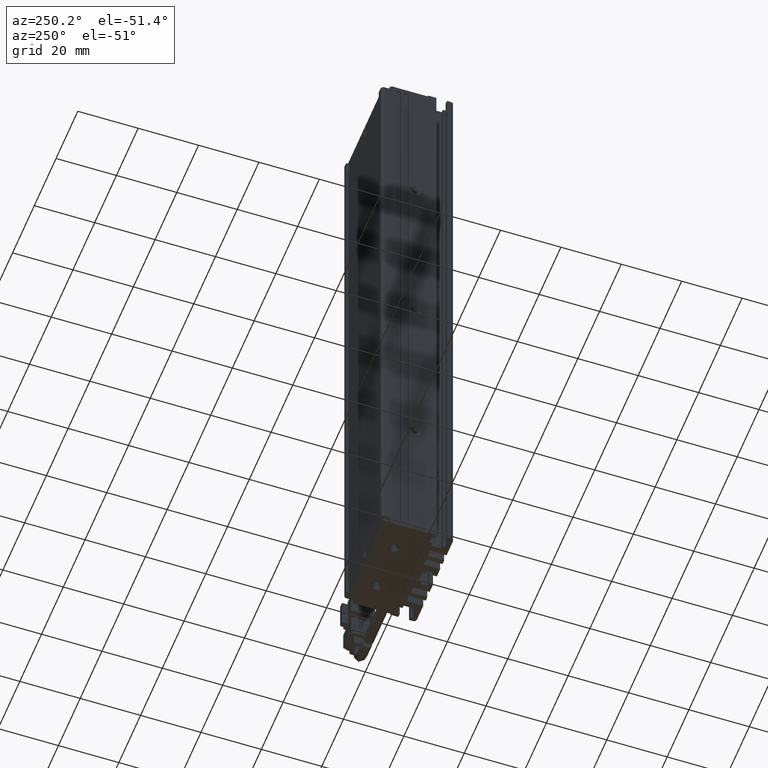
[diagram: clean part render]
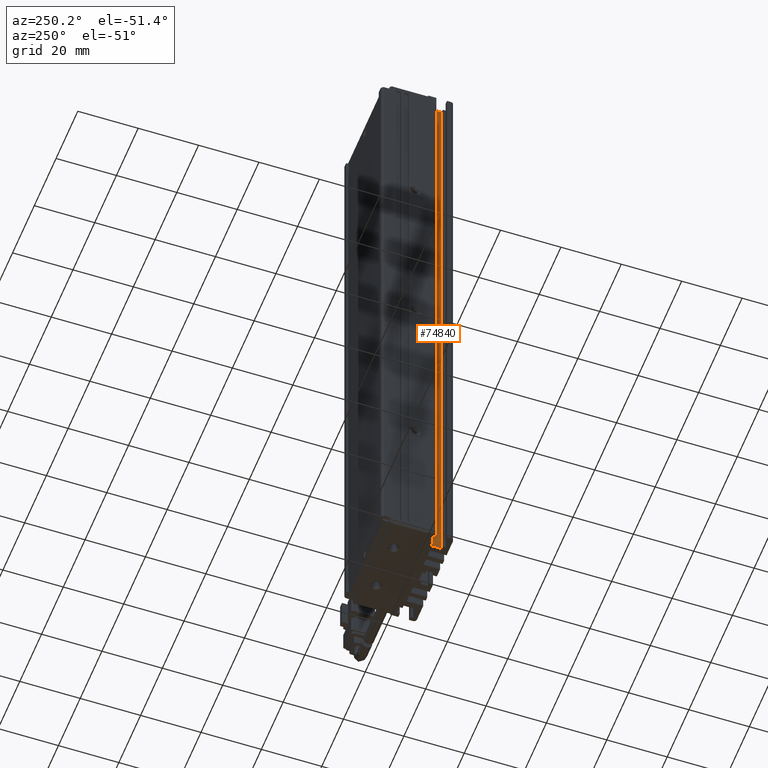
[diagram: same view with one face highlighted and labeled with its STEP entity id]
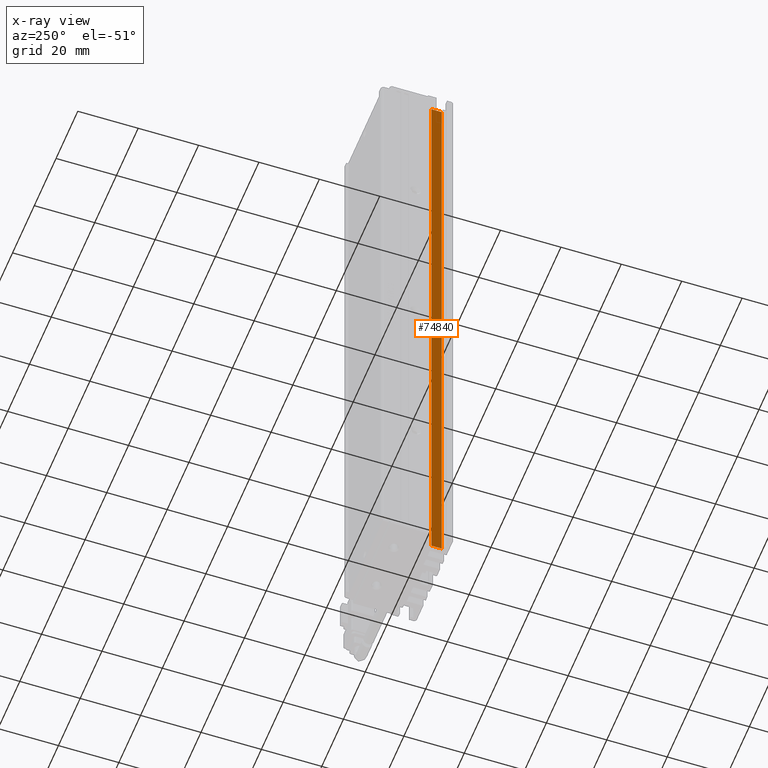
[diagram: x-ray of the same camera — body ghosted, the highlighted face saturated]
A machine part, auxiliary view. The second image highlights one B-rep face of the part: STEP entity #74840.
The next image is the same camera in x-ray: the body ghosted, the highlighted face saturated — about 0% of this face is hidden behind the body in this view.
In plain terms, the highlighted planar face has unit normal (1, 0, -0).
Its self-contained STEP definition (entity closure, byte-faithful):
#1075 = CARTESIAN_POINT ( 'NONE',  ( 28.22537974683543600, 13.29073232304836900, -224.0000000000000000 ) ) ;
#1155 = LINE ( 'NONE', #73774, #79936 ) ;
#1203 = FACE_OUTER_BOUND ( 'NONE', #14535, .T. ) ;
#1422 = AXIS2_PLACEMENT_3D ( 'NONE', #3128, #51761, #66402 ) ;
#3128 = CARTESIAN_POINT ( 'NONE',  ( 28.22537974683543600, 7.083797468354437600, -6.000000000000005300 ) ) ;
#3737 = LINE ( 'NONE', #33774, #52995 ) ;
#4650 = DIRECTION ( 'NONE',  ( -0.0000000000000000000, -1.000000000000000000, 0.0000000000000000000 ) ) ;
#7052 = CARTESIAN_POINT ( 'NONE',  ( 28.22537974683543600, 7.083797468354437600, -6.000000000000005300 ) ) ;
#10123 = EDGE_CURVE ( 'NONE', #84705, #78921, #3737, .T. ) ;
#14535 = EDGE_LOOP ( 'NONE', ( #76629, #51538, #63805, #66581 ) ) ;
#27289 = VECTOR ( 'NONE', #40760, 1000.000000000000000 ) ;
#33774 = CARTESIAN_POINT ( 'NONE',  ( 28.22537974683543600, 7.083797468354437600, -224.0000000000000000 ) ) ;
#40760 = DIRECTION ( 'NONE',  ( -0.0000000000000000000, -1.000000000000000000, 0.0000000000000000000 ) ) ;
#43129 = CARTESIAN_POINT ( 'NONE',  ( 28.22537974683543600, 13.29073232304836900, -6.000000000000005300 ) ) ;
#44721 = PLANE ( 'NONE',  #1422 ) ;
#45717 = EDGE_CURVE ( 'NONE', #84705, #72548, #1155, .T. ) ;
#51538 = ORIENTED_EDGE ( 'NONE', *, *, #66830, .F. ) ;
#51761 = DIRECTION ( 'NONE',  ( 1.000000000000000000, 0.0000000000000000000, -0.0000000000000000000 ) ) ;
#52890 = CARTESIAN_POINT ( 'NONE',  ( 28.22537974683543600, 16.79073232304837400, -224.0000000000000000 ) ) ;
#52995 = VECTOR ( 'NONE', #4650, 1000.000000000000000 ) ;
#56239 = EDGE_CURVE ( 'NONE', #79222, #78921, #85047, .T. ) ;
#63462 = CARTESIAN_POINT ( 'NONE',  ( 28.22537974683543600, 16.79073232304837400, -6.000000000000005300 ) ) ;
#63805 = ORIENTED_EDGE ( 'NONE', *, *, #45717, .F. ) ;
#66402 = DIRECTION ( 'NONE',  ( -0.0000000000000000000, 0.0000000000000000000, -1.000000000000000000 ) ) ;
#66463 = VECTOR ( 'NONE', #78275, 1000.000000000000000 ) ;
#66581 = ORIENTED_EDGE ( 'NONE', *, *, #10123, .T. ) ;
#66830 = EDGE_CURVE ( 'NONE', #72548, #79222, #87413, .T. ) ;
#67110 = CARTESIAN_POINT ( 'NONE',  ( 28.22537974683543600, 13.29073232304836900, -6.000000000000005300 ) ) ;
#67347 = DIRECTION ( 'NONE',  ( 0.0000000000000000000, -0.0000000000000000000, 1.000000000000000000 ) ) ;
#72548 = VERTEX_POINT ( 'NONE', #63462 ) ;
#73774 = CARTESIAN_POINT ( 'NONE',  ( 28.22537974683543600, 16.79073232304837400, -6.000000000000005300 ) ) ;
#74840 = ADVANCED_FACE ( 'NONE', ( #1203 ), #44721, .F. ) ;
#76629 = ORIENTED_EDGE ( 'NONE', *, *, #56239, .F. ) ;
#78275 = DIRECTION ( 'NONE',  ( -0.0000000000000000000, 0.0000000000000000000, -1.000000000000000000 ) ) ;
#78921 = VERTEX_POINT ( 'NONE', #1075 ) ;
#79222 = VERTEX_POINT ( 'NONE', #67110 ) ;
#79936 = VECTOR ( 'NONE', #67347, 1000.000000000000000 ) ;
#84705 = VERTEX_POINT ( 'NONE', #52890 ) ;
#85047 = LINE ( 'NONE', #43129, #66463 ) ;
#87413 = LINE ( 'NONE', #7052, #27289 ) ;